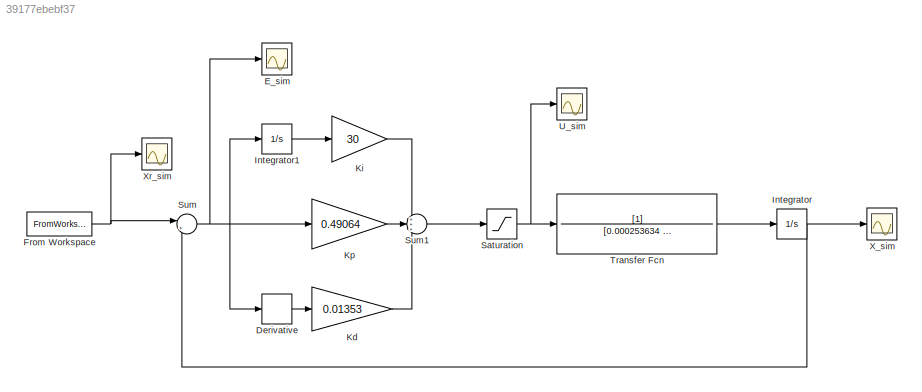
MODEL slx_39177ebebf37
KIND model
CONFIG AbsTol = auto
CONFIG EnableMultiTasking = off
CONFIG FixedStep = auto
CONFIG MaxStep = auto
CONFIG MinStep = auto
CONFIG RelTol = 1e-3
CONFIG SampleTimeConstraint = Unconstrained
CONFIG SolverName = VariableStepAuto
CONFIG StartTime = 0.0
CONFIG StopTime = 10
BLOCK [Derivative] Derivative
BLOCK [Scope] E_sim
  ActiveDisplayYMaximum = 0.05129796457847359
  ActiveDisplayYMinimum = -0.010277611876142536
  DataLogging = on
  DataLoggingSaveFormat = Array
  DataLoggingVariableName = e_sim
  Floating = off
  GraphicalSettings = {"Style":{"BackgroundColor":[0.12941176470588237,0.12941176470588237,0.12941176470588237],"AxesColor":[0.07058823529411765,0.07058823529411765,0.07058823529411765],"LabelsColor":[0.8509803921568627,0.8509803921568627,0.8509803921568627],"PreserveColors":false,"Visible":[true],"LineStyle":["-"],"LineWidth":[1.5],"BarWidth":[0.9],"LineColor":["auto"],"LineFaceAlpha":[1],"LineEdgeAlpha":[1],"Marker":...<+1997ch>
  MultipleDisplayCache = [{"MaxYLimMag":11.250007023053268,"MaxYLimReal":0.05129796457847359,"MinYLimMag":0,"MinYLimReal":-0.010277611876142536,"PlotAsMagnitudePhase":false,"ShowGrid":true,"ShowLegend":false,"Title":"%<SignalLabel>","YLabel":""}]
  NumInputPorts = 1
  ScopeFrameLocation = window
  WasSavedAsWebScope = on
  WindowPosition = [184.000000,194.000000,563.000000,424.000000,]
BLOCK [FromWorkspace] From Workspace
  VariableName = xr_simin
BLOCK [Integrator] Integrator
BLOCK [Integrator] Integrator1
  Commented = on
BLOCK [Gain] Kd
  Gain = 0.01353
BLOCK [Gain] Ki
  Commented = on
  Gain = 30
BLOCK [Gain] Kp
  Gain = 0.49064
BLOCK [Saturate] Saturation
  LowerLimit = -10
  UpperLimit = 10
BLOCK [Sum] Sum
  Inputs = |+-
BLOCK [Sum] Sum1
  Inputs = +++
BLOCK [TransferFcn] Transfer Fcn
  Denominator = [0.000253634 0.0027272]
BLOCK [Scope] U_sim
  ActiveDisplayYMaximum = 0.48106144397274281
  ActiveDisplayYMinimum = -0.48060153644248227
  DataLogging = on
  DataLoggingSaveFormat = Array
  DataLoggingVariableName = u_sim
  Floating = off
  GraphicalSettings = {"AxesScalingProperties":{"AlignXAxis":"Center","AlignYAxis":"Center","AutoScaleXAxisLimits":false,"AxesScaling":"Manual","AxesScalingNumUpdates":10,"ExpandOnly":true,"ScaleAxesLimitsAtStop":false,"XAxisDataRange":100,"YAxisDataRange":80},"DisplayProperties":{"ColorOrder":["auto","auto","auto","auto","auto","auto","auto","auto","auto","auto","auto","auto","auto","auto","auto","auto","auto","auto",...<+2018ch>
  MultipleDisplayCache = [{"MaxYLimMag":0.48106144397274281,"MaxYLimReal":0.48106144397274281,"MinYLimMag":0,"MinYLimReal":-0.48060153644248227,"PlotAsMagnitudePhase":false,"ShowGrid":true,"ShowLegend":false,"Title":"%<SignalLabel>","YLabel":""}]
  NumInputPorts = 1
  ScopeFrameLocation = window
  WasSavedAsWebScope = on
  WindowPosition = [2881.000000,49.000000,2560.000000,1369.000000,]
BLOCK [Scope] X_sim
  ActiveDisplayYMaximum = 2.5786015903640132
  ActiveDisplayYMinimum = -2.6033865969925345
  DataLogging = on
  DataLoggingSaveFormat = Array
  DataLoggingVariableName = x_sim
  Floating = off
  GraphicalSettings = {"Style":{"BackgroundColor":[0.12941176470588237,0.12941176470588237,0.12941176470588237],"AxesColor":[0.07058823529411765,0.07058823529411765,0.07058823529411765],"LabelsColor":[0.8509803921568627,0.8509803921568627,0.8509803921568627],"PreserveColors":false,"Visible":[true],"LineStyle":["-"],"LineWidth":[1.5],"BarWidth":[0.9],"LineColor":["auto"],"LineFaceAlpha":[1],"LineEdgeAlpha":[1],"Marker":...<+2003ch>
  MultipleDisplayCache = [{"MaxYLimMag":2.6033865969925345,"MaxYLimReal":2.5786015903640132,"MinYLimMag":0,"MinYLimReal":-2.6033865969925345,"PlotAsMagnitudePhase":false,"ShowGrid":true,"ShowLegend":false,"Title":"%<SignalLabel>","YLabel":""}]
  NumInputPorts = 1
  ScopeFrameLocation = window
  WasSavedAsWebScope = on
  WindowPosition = [0.000000,35.000000,1440.000000,830.000000,]
BLOCK [Scope] Xr_sim
  ActiveDisplayYMaximum = 56.25
  ActiveDisplayYMinimum = -6.2499999999999982
  DataLogging = on
  DataLoggingSaveFormat = Array
  DataLoggingVariableName = xr_sim
  Floating = off
  GraphicalSettings = {"Style":{"BackgroundColor":[0.12941176470588237,0.12941176470588237,0.12941176470588237],"AxesColor":[0.07058823529411765,0.07058823529411765,0.07058823529411765],"LabelsColor":[0.8509803921568627,0.8509803921568627,0.8509803921568627],"PreserveColors":false,"Visible":[true],"LineStyle":["-"],"LineWidth":[1.5],"BarWidth":[0.9],"LineColor":["auto"],"LineFaceAlpha":[1],"LineEdgeAlpha":[1],"Marker":...<+1929ch>
  MultipleDisplayCache = [{"MaxYLimMag":56.25,"MaxYLimReal":56.25,"MinYLimMag":0,"MinYLimReal":-6.2499999999999982,"PlotAsMagnitudePhase":false,"ShowGrid":true,"ShowLegend":false,"Title":"%<SignalLabel>","YLabel":""}]
  NumInputPorts = 1
  ScopeFrameLocation = window
  WasSavedAsWebScope = on
  WindowPosition = [595.000000,163.000000,563.000000,424.000000,]
LINE Derivative:1 -> Kd:1
NET From Workspace:1 -> Sum:1, Xr_sim:1
LINE Integrator1:1 -> Ki:1
NET Integrator:1 -> Sum:2, X_sim:1
LINE Kd:1 -> Sum1:3
LINE Ki:1 -> Sum1:1
LINE Kp:1 -> Sum1:2
NET Saturation:1 -> Transfer Fcn:1, U_sim:1
LINE Sum1:1 -> Saturation:1
NET Sum:1 -> Derivative:1, E_sim:1, Integrator1:1, Kp:1
LINE Transfer Fcn:1 -> Integrator:1
note: NET lines group one-source signal fan-out (src -> all destinations, sorted); 1:1 wires keep LINE
